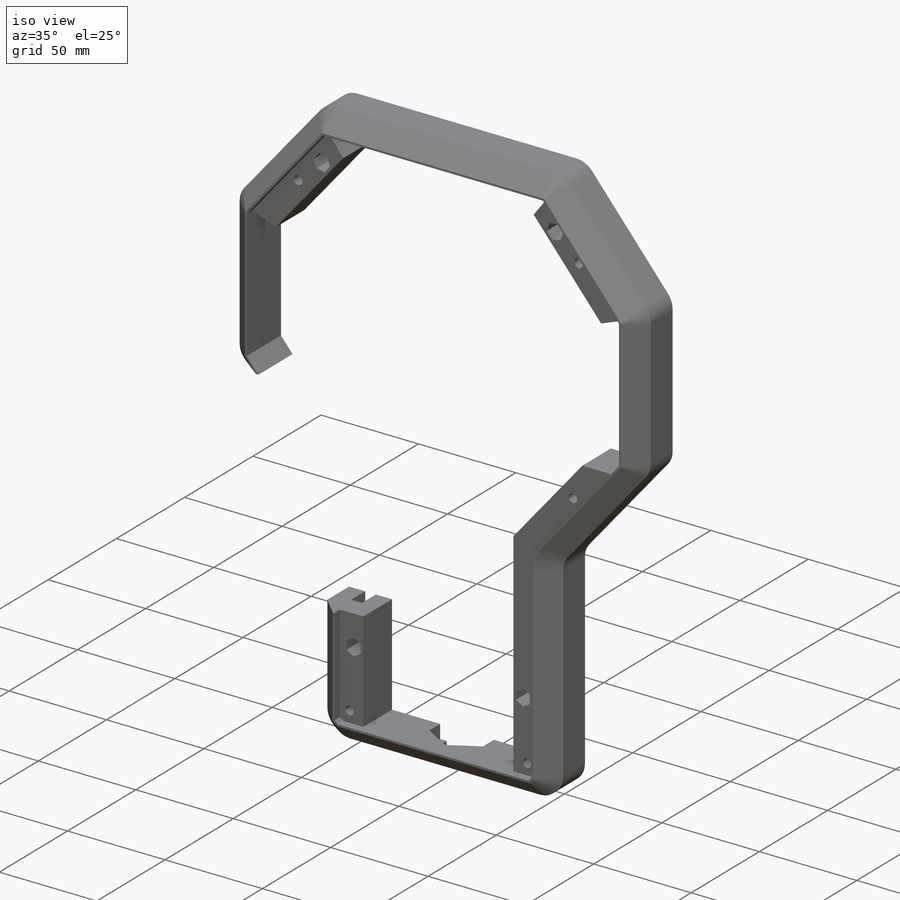
[diagram: iso view]
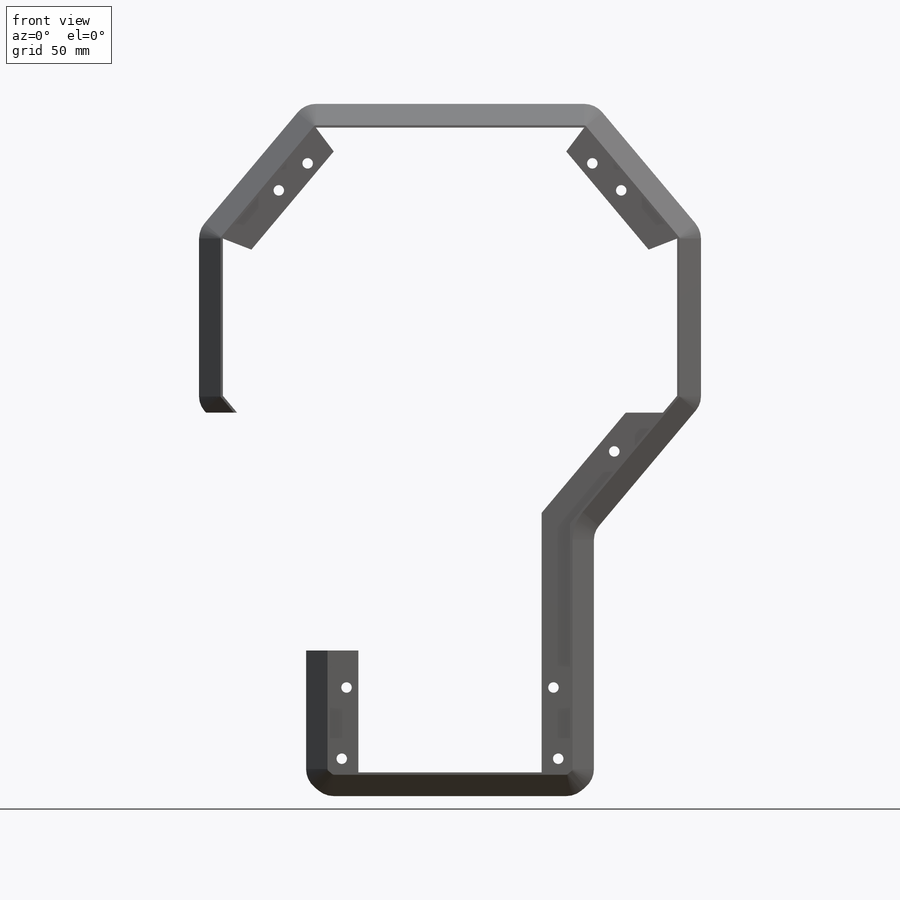
[diagram: front view]
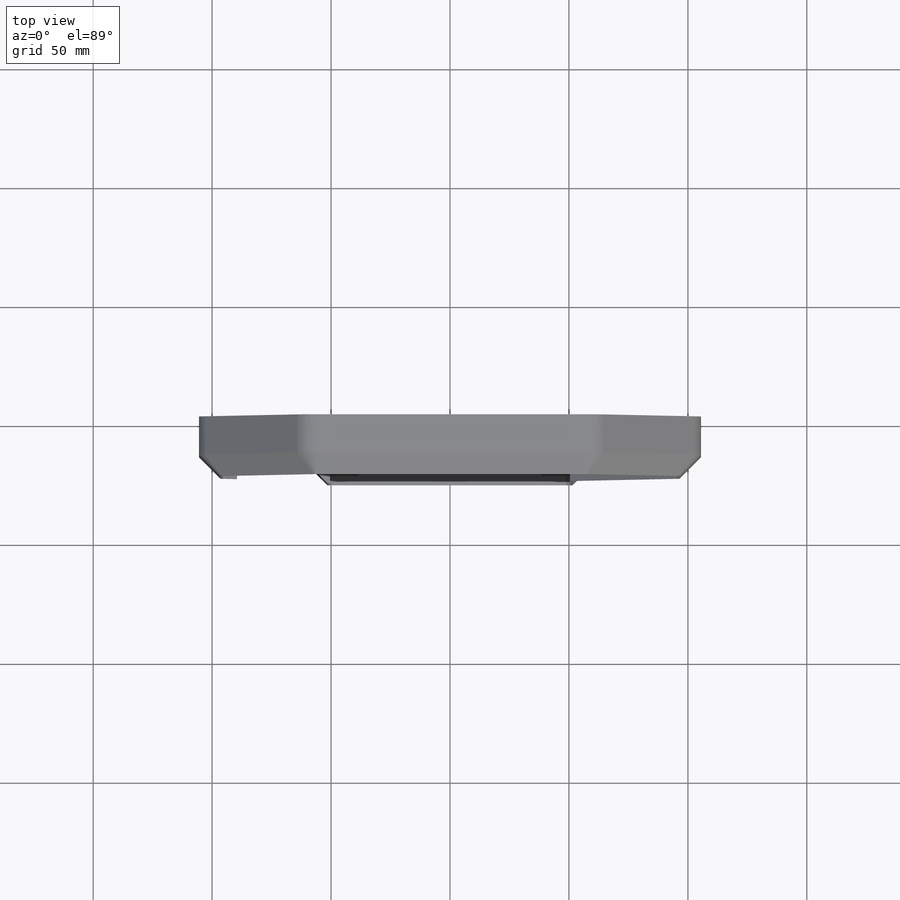
[diagram: top view]
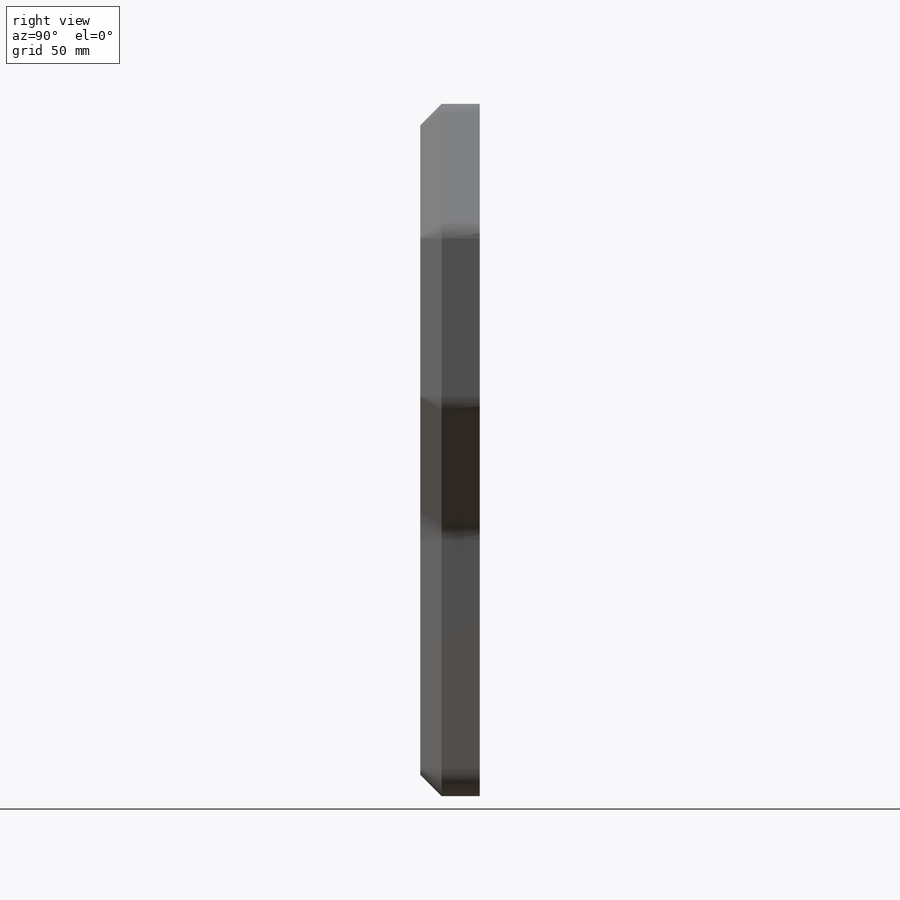
[diagram: right view]
SOLIDWORKS PART (.sldprt)
format: sldprt  version: not decoded by parser v0  size: 934,912 bytes
history: native  units: mm
features: sketch x20, cut_extrude x15, plane x7, extrude x5, chamfer x2, material x1 (+9 scaffold rows collapsed)
feature tree (59):
  scaffold x9  (default folders/planes/origin — collapsed)
  material  "Material <não especificado>"
  plane  "Plano frontal"
  plane  "Plano superior"
  plane  "Plano direito"
  sketch  "Esboço1"  dims[c1.D1=10.0mm c1.D7=10.0mm c1.D12=10.0mm c1.D14=10.0mm c1.D19=10.0mm c1.D16=10.0mm c1.D5=10.0mm c1.D11=10.0mm c2.D1=~1.24588mm c2.D2=100.0mm c2.D3=280.0mm c2.D4=60.0mm c2.D5=100.0mm c2.D6=130.0mm c2.D7=30.0mm c3.D7=~67.380135deg c3.D2=105.5mm c3.D4=60.5mm c4.D7=70.0mm c4.D8=~35.478716mm c5.D8=60.0deg c5.D9=10.0mm c5.D10=40.0mm c5.D11=20.0mm c5.D12=25.0mm c5.D13=~46.188022mm c6.D13=~166.874494deg c7.D13=~46.188022mm c8.D13=60.0deg c9.D13=~37.416574mm c10.D13=~73.125506deg c10.D6=120.0mm c11.D6=50.0deg c11.D13=~46.188022mm c11.D8=22.0mm c11.D10=22.0mm c12.D13=10.0mm c12.D9=20.0mm c12.D7=70.0mm c13.D7=60.0deg c14.D7=35.0mm c15.D7=50.0deg c16.D7=35.0mm c17.D7=40.0deg c17.D13=~28.329561mm c18.D13=40.0deg c18.D14=~27.102904mm c18.D15=22.0mm c18.D16=35.0mm c19.D16=50.0deg c20.D16=~17.99455mm c21.D16=50.0deg c21.D17=60.0mm c21.D18=55.0mm c21.D9=20.0mm c22.D18=~3.835072mm c23.D18=50.0deg c23.D19=~22.263011mm c23.D20=~113.27479mm c23.D21=~89.503465mm c23.D22=~99.036958mm c23.D17=~32.635182mm c23.D3=40.0mm c23.D23=~311.224754mm c24.D3=300.0mm c24.D16=~7.014531mm c24.D5=60.0mm c24.D6=~55.015408mm c25.D6=130.8deg c26.D6=~56.453349mm c27.D6=40.0deg c27.D19=100.0mm c27.D5=10.0mm c28.D5=40.0deg c28.D16=10.0mm c29.D16=40.0deg c30.D16=~10.640136mm c31.D16=40.0deg c31.D17=~53.628912mm c31.D3=20.0mm c31.D5=~16.553113mm c32.D5=40.0deg c32.D9=285.0mm c32.D11=100.0mm c32.D16=20.0mm c32.D17=~22.994089mm c32.D18=~53.628912mm c33.D11=~17.676708mm c33.D9=291.0mm]
  extrude  "Ressalto-extrusão1"  Depth=50mm
  chamfer  "Chanfro1"  Distance=9mm Angle=45deg
  sketch  "Esboço2"  dims[D1=~308.085955mm D2=~214.613274mm]
  cut_extrude  "Corte-extrusão1"  [1 undecoded]
  sketch  "Esboço3"  dims[c1.D1=9.0mm c1.D2=14.0mm c1.D3=9.0mm c1.D4=15.0mm c1.D5=30.0mm c2.D5=~0.102377deg c3.D5=9.0mm c3.D1=15.0mm c3.D2=10.0mm c3.D6=~32.635182mm c4.D6=~0.088851deg c4.D7=~28.164446mm c5.D6=~24.923581mm c5.D7=~20.443798mm c5.D5=9.0mm c6.D7=1.0mm c6.D8=~21.98142mm c6.D6=1.0mm c7.D7=1.0mm c7.D8=1.0mm c7.D9=~97.078385mm c8.D9=90.0deg c8.D5=1.0mm c8.D6=10.0mm c9.D9=1.0mm c9.D10=90.0mm c10.D10=~179.902698deg c11.D10=15.0mm c11.D11=1.0mm c11.D1=~9.760506mm c11.D2=~39.142506mm c12.D2=~179.381038deg c13.D2=~7.286661mm c13.D3=1.0mm c13.D4=1.0mm c13.D5=1.0mm c13.D6=1.0mm c13.D7=1.0mm c14.D6=~52.516592mm c15.D6=~1.224615deg c16.D6=1.0mm c16.D1=1.0mm c16.D2=1.0mm c16.D8=~1.107715mm c17.D8=40.0deg c18.D8=~1.723298mm]
  cut_extrude  "Corte-extrusão2"  Depth=4mm
  sketch  "Esboço4"  dims[c1.D1=10.0mm c2.D1=40.0deg c3.D1=~10.641778mm]
  cut_extrude  "Corte-extrusão3"  [1 undecoded]
  sketch  "Esboço5"  dims[c1.D1=4.0mm c1.D2=4.0mm c1.D3=4.0mm c1.D4=4.0mm c1.D5=4.0mm c1.D6=4.0mm c1.D8=4.0mm c1.D9=2.0mm c2.D5=4.2mm c2.D9=4.2mm c3.D5=4.2mm c3.D9=2.1mm c3.D1=5.0mm c3.D2=7.0mm c3.D3=7.0mm c3.D4=5.0mm c4.D5=15.0mm c4.D6=30.0mm c4.D7=16.0mm c4.D8=29.0mm c4.D9=~334.562472mm c5.D7=~26.355396mm c5.D8=15.0mm c5.D5=~1.50175mm c6.D5=90.0deg c7.D5=5.0mm c7.D9=~23.838401mm c8.D5=7.0mm c8.D9=35.0mm]
  cut_extrude  "Corte-extrusão4"  [1 undecoded]
  sketch  "Esboço6"  dims[D1=~4.041452mm]
  cut_extrude  "Corte-extrusão5"  Depth=15mm
  sketch  "Esboço7"  dims[D1=~151.230763mm D2=100.0mm]
  cut_extrude  "Corte-extrusão6"  [1 undecoded]
  sketch  "Esboço8"  dims[D1=~91.422138mm]
  cut_extrude  "Corte-extrusão7"  [1 undecoded]
  sketch  "Esboço9"  dims[D1=13.6mm]
  cut_extrude  "Corte-extrusão8"  Depth=7mm
  sketch  "Esboço10"  dims[D1=7.625mm]
  cut_extrude  "Corte-extrusão9"  Depth=7mm
  sketch  "Esboço11"  dims[D1=3.6mm]
  cut_extrude  "Corte-extrusão10"  Depth=10mm
  sketch  "Esboço12"  dims[c1.D1=5.0mm c1.D2=5.0mm c1.D3=5.0mm c1.D4=5.0mm c1.D5=7.0mm c1.D6=20.0mm c2.D3=7.5mm c2.D4=24.0mm c2.D1=16.5mm c2.D2=3.1mm c3.D3=30.0mm c3.D4=4.0mm c3.D5=1.4mm c3.D6=2.85mm c3.D1=16.5mm c3.D2=30.0mm]
  cut_extrude  "Corte-extrusão11"  Depth=10mm
  sketch  "Esboço13"  dims[c1.D1=4.4mm c1.D3=~2.176482mm c1.D4=4.4mm c2.D1=16.5mm c2.D2=4.0mm c2.D3=30.0mm c2.D4=6.5mm]
  cut_extrude  "Corte-extrusão12"  Depth=3mm
  sketch  "Esboço14"  dims[D1=1.75mm D2=5.5mm D3=10.25mm]
  cut_extrude  "Corte-extrusão13"  Depth=5.25mm
  sketch  "Esboço15"  dims[D1=5.5mm D2=10.25mm D3=8.25mm D4=7.25mm]
  cut_extrude  "Corte-extrusão14"  Depth=5.25mm
  sketch  "Esboço16"  dims[c1.D1=4.2mm c1.D2=4.2mm c1.D3=2.1mm c2.D1=16.32mm c2.D2=30.55mm]
  cut_extrude  "Corte-extrusão15"  [1 undecoded]
  chamfer  "Chanfro2"  Distance=8mm Angle=15deg
  plane  "Plano1"
  sketch  "Esboço17"  dims[D1=0.0mm]
  extrude  "Ressalto-extrusão2"  [1 undecoded]
  plane  "Plano2"
  sketch  "Esboço18"  dims[D1=0.0mm]
  extrude  "Ressalto-extrusão3"  [1 undecoded]
  plane  "Plano3"
  sketch  "Esboço20"  dims[D1=0.0mm]
  extrude  "Ressalto-extrusão5"  [1 undecoded]
  plane  "Plano4"
  sketch  "Esboço21"  dims[D1=0.0mm]
  extrude  "Ressalto-extrusão6"  [1 undecoded]
decode coverage: 32 of 42 modeling features carry decoded parameters
note: ~ marks probable driven/reference dimensions
note: 10 parameter values undecoded
summary: no parameter record found for 10 features
note: suppression state not decoded; provenance and decode notes live in map.json
